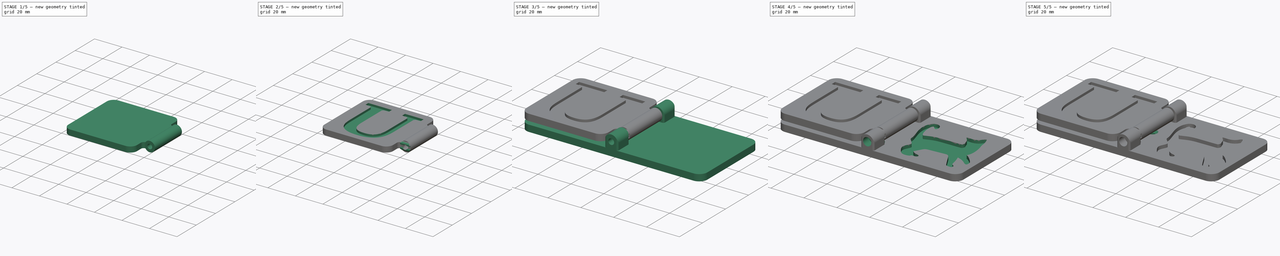
[diagram: build sequence overview — one tinted view per stage of 5, left to right]
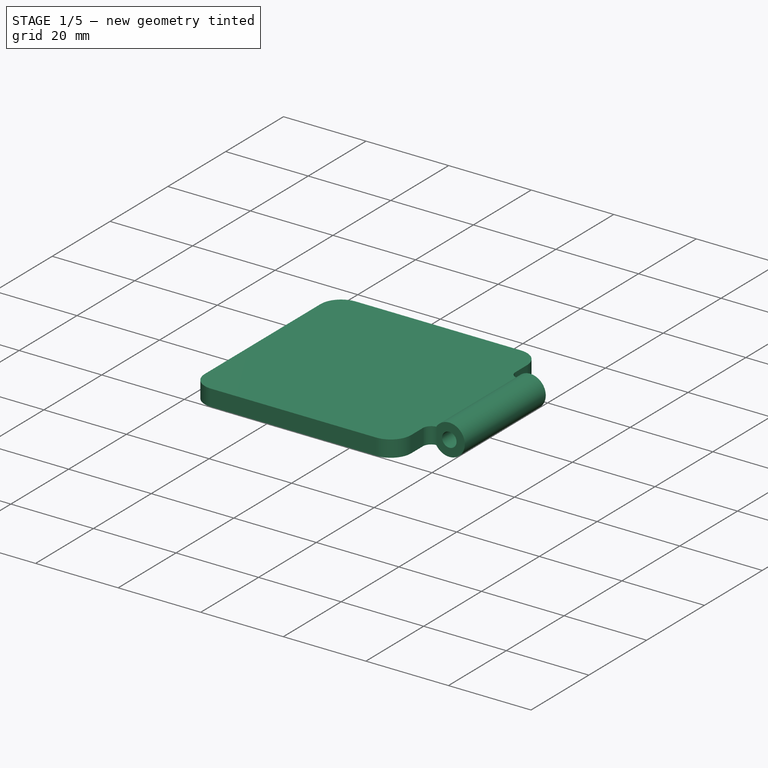
[diagram: stage 1 of 5 — iso view after this stage's code; geometry added in this stage tinted green]
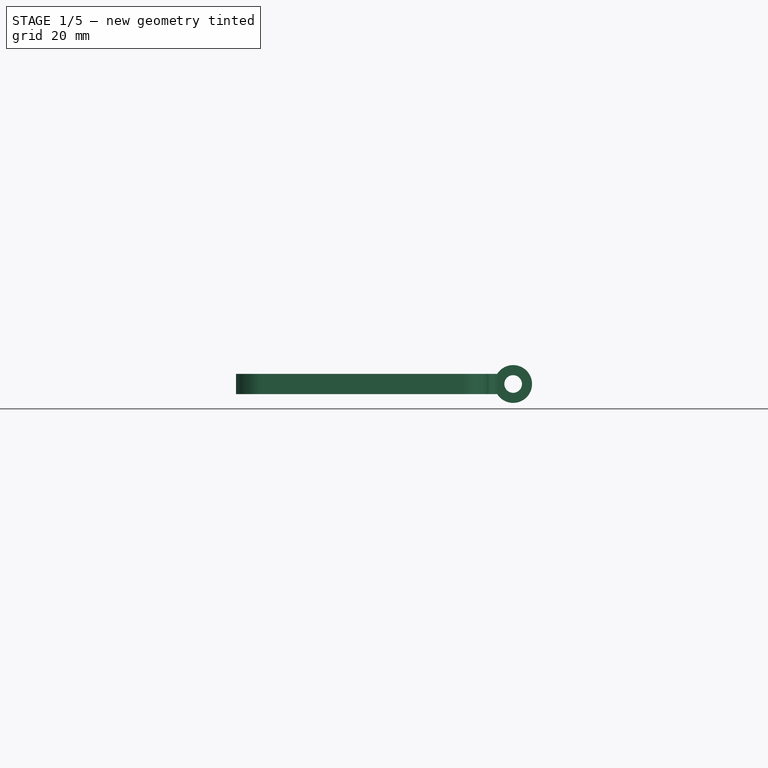
[diagram: stage 1 of 5 — front view after this stage's code; geometry added in this stage tinted green]
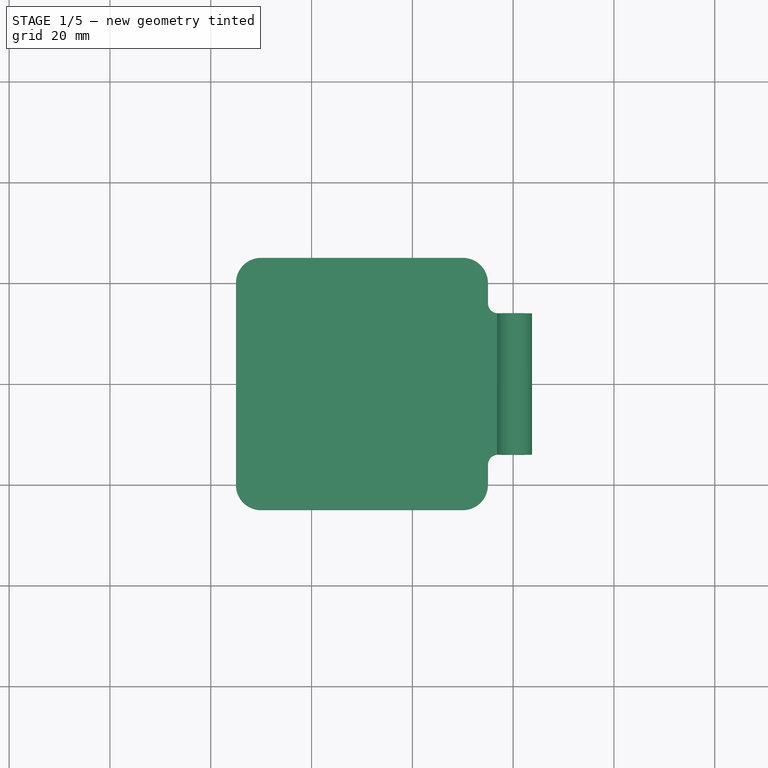
[diagram: stage 1 of 5 — top view after this stage's code; geometry added in this stage tinted green]
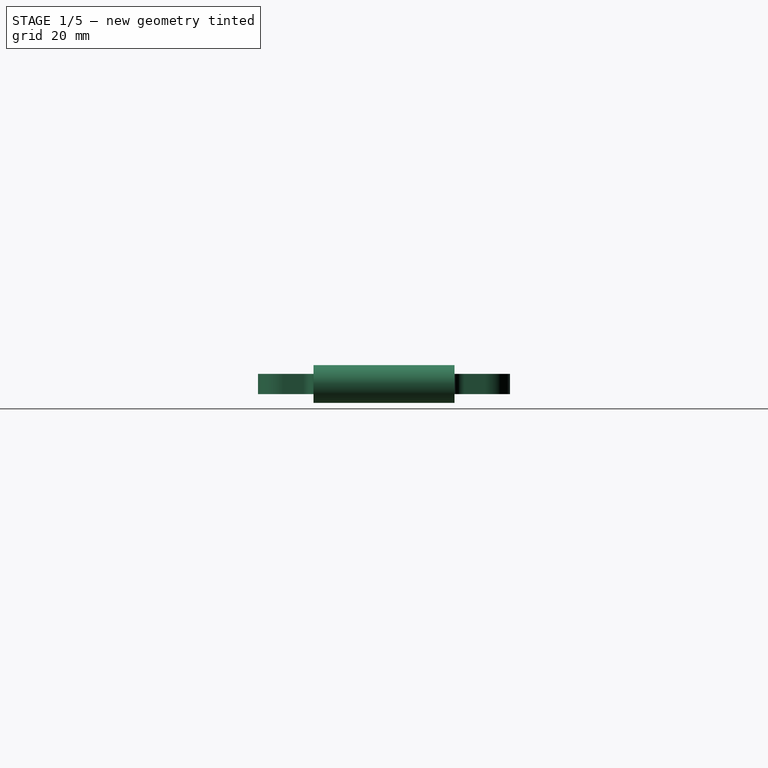
[diagram: stage 1 of 5 — right view after this stage's code; geometry added in this stage tinted green]
FCSTD DOCUMENT  (FreeCAD 1.0R39109 (Git))
Label: Cat is In-Out
License: All rights reserved
LicenseURL: https://en.wikipedia.org/wiki/All_rights_reserved
objects: Sketcher::SketchObject×14, PartDesign::Pocket×10, PartDesign::Pad×6, PartDesign::Body×2, Part::Part2DObjectPython×2, PartDesign::Plane×1, PartDesign::Chamfer×1
note: 84 computed .brp shape members not serialized (recipe doc carries the construction recipe); baked Part::Feature solids carry a one-line shape summary decoded from their .brp

FEATURE [PartDesign::Plane] DatumPlane
  AttachmentOffset = pos=(0,0,0) rot=(1,0,0;1.5708rad)
  AttachmentSupport = -> [Pocket]
  Length = 124.832
  MapMode = 45
  Placement = pos=(8.2e-15,5.2e-15,8) rot=(0,1,0;3.14159rad)
  ResizeMode = 0
  Width = 64.8324
FEATURE [Sketcher::SketchObject] Sketch003
  ArcFitTolerance = 1e-06
  AttachmentOffset = pos=(0,0,0) rot=(0,1,0;3.14159rad)
  AttachmentSupport = -> [DatumPlane]
  FullyConstrained = true
  MakeInternals = false
  MapMode = 5
  Placement = pos=(8.2e-15,5.2e-15,8) rot=(0,0,1;0rad)
  sketch-geometry (16):
    g0: LineSegment StartX=-55 StartY=20 StartZ=0 EndX=-55 EndY=-20 EndZ=0
    g1: LineSegment StartX=-50 StartY=-25 StartZ=0 EndX=-10 EndY=-25 EndZ=0
    g2: LineSegment StartX=-5 StartY=-20 StartZ=0 EndX=-5 EndY=-16 EndZ=0
    g3: LineSegment StartX=-10 StartY=25 StartZ=0 EndX=-50 EndY=25 EndZ=0
    g4: ArcOfCircle CenterX=-50 CenterY=20 CenterZ=0 NormalX=0 NormalY=0 NormalZ=1 AngleXU=0 Radius=5 StartAngle=1.5708 EndAngle=3.14159
    g5: ArcOfCircle CenterX=-50 CenterY=-20 CenterZ=0 NormalX=0 NormalY=0 NormalZ=1 AngleXU=0 Radius=5 StartAngle=3.14159 EndAngle=4.71239
    g6: ArcOfCircle CenterX=-10 CenterY=-20 CenterZ=0 NormalX=0 NormalY=0 NormalZ=1 AngleXU=0 Radius=5 StartAngle=4.71239 EndAngle=6.28319
    g7: ArcOfCircle CenterX=-10 CenterY=20 CenterZ=0 NormalX=0 NormalY=0 NormalZ=1 AngleXU=0 Radius=5 StartAngle=0 EndAngle=1.5708
    g8: GeomPoint [constr] X=-55 Y=25 Z=0
    g9: GeomPoint [constr] X=-5 Y=-25 Z=0
    g10: ArcOfCircle CenterX=-3 CenterY=16 CenterZ=0 NormalX=0 NormalY=0 NormalZ=1 AngleXU=0 Radius=2 StartAngle=3.14159 EndAngle=4.71239
    g11: ArcOfCircle CenterX=-3 CenterY=-16 CenterZ=0 NormalX=0 NormalY=0 NormalZ=1 AngleXU=0 Radius=2 StartAngle=1.5708 EndAngle=3.14159
    g12: LineSegment StartX=-3 StartY=14 StartZ=0 EndX=0 EndY=14 EndZ=0
    g13: LineSegment StartX=0 StartY=14 StartZ=0 EndX=0 EndY=-14 EndZ=0
    g14: LineSegment StartX=0 StartY=-14 StartZ=0 EndX=-3 EndY=-14 EndZ=0
    g15: LineSegment StartX=-5 StartY=16 StartZ=0 EndX=-5 EndY=20 EndZ=0
  constraints (38):
    c: Tangent(g0,g4) = -1.5708
    c: Tangent(g0,g5) = -1.5708
    c: Tangent(g1,g5) = -1.5708
    c: Tangent(g1,g6) = -1.5708
    c: Tangent(g2,g6) = -1.5708
    c: Tangent(g3,g7) = -1.5708
    c: Tangent(g3,g4) = -1.5708
    c: Vertical(g0)
    c: Vertical(g2)
    c: Horizontal(g1)
    c: Horizontal(g3)
    c: Equal(g5,g6)
    c: Equal(g6,g7)
    c: PointOnObject(g8,g0)
    c: PointOnObject(g8,g3)
    c: PointOnObject(g9,g1)
    c: PointOnObject(g9,g2)
    c: Distance(g0,g15) = 50
    c: Distance(g1,g3) = 50
    c: Radius(g5) = 5
    c: DistanceX(g15,g-1) = 5
    c: Symmetric(g3,g1,g-1)
    c: Horizontal(g12)
    c: Horizontal(g14)
    c: Tangent(g14,g11) = -1.5708
    c: Tangent(g12,g10) = -1.5708
    c: Symmetric(g13,g13,g-1)
    c: Radius(g10) = 2
    c: DistanceY(g14,g12) = 28
    c: Tangent(g2,g11) = 1.5708
    c: Tangent(g15,g10) = 1.5708
    c: Vertical(g15)
    c: Tangent(g15,g7) = -1.5708
    c: Vertical(g2,g10)
    c: Coincident(g14,g13)
    c: Coincident(g13,g12)
    c: Equal(g11,g10)
    c: PointOnObject(g12,g-2)
FEATURE [PartDesign::Pad] Pad002
  Direction = (0,1e-16,1)
  Length = 4
  Length2 = 10
  Midplane = true
  Placement = pos=(8.2e-15,5.2e-15,8) rot=(0,1,0;3.14159rad)
  Profile = -> Sketch003
  ReferenceAxis = -> Sketch003 [N_Axis]
  Refine = true
  Suppressed = false
  Type = 0
FEATURE [Sketcher::SketchObject] Sketch004
  ArcFitTolerance = 1e-06
  AttachmentSupport = -> [Pad002]
  ExternalGeometry = -> [Pad002]
  FullyConstrained = true
  MakeInternals = false
  MapMode = 5
  Placement = pos=(9.9e-15,-14,8) rot=(0,0.707107,-0.707107;3.14159rad)
  sketch-geometry (1):
    g0: Circle CenterX=0 CenterY=0 CenterZ=0 NormalX=0 NormalY=0 NormalZ=1 AngleXU=0 Radius=3.75
  constraints (2):
    c: Coincident(g0,g-1)
    c: Diameter(g0) = 7.5
FEATURE [PartDesign::Pad] Pad003
  BaseFeature = -> Pad002
  Direction = (0,-1,-2e-16)
  Length = 10
  Length2 = 10
  Placement = pos=(8.2e-15,5.2e-15,8) rot=(0,1,0;3.14159rad)
  Profile = -> Sketch004
  ReferenceAxis = -> Sketch004 [N_Axis]
  Refine = true
  Suppressed = false
  Type = 3
  UpToFace = -> Pad002 [Face13]
FEATURE [PartDesign::Pocket] Pocket001
  BaseFeature = -> Pad003
  Direction = (0,1,2e-16)
  Length = 5
  Length2 = 5
  Placement = pos=(8.2e-15,5.2e-15,8) rot=(0,1,0;3.14159rad)
  Profile = -> Sketch005
  ReferenceAxis = -> Sketch005 [N_Axis]
  Refine = true
  Suppressed = false
  Type = 1
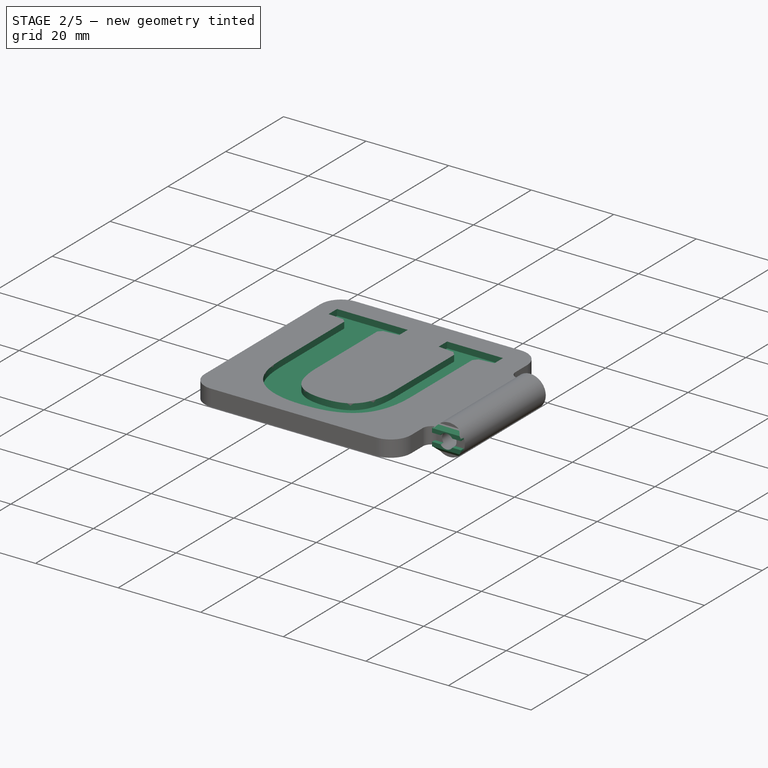
[diagram: stage 2 of 5 — iso view after this stage's code; geometry added in this stage tinted green]
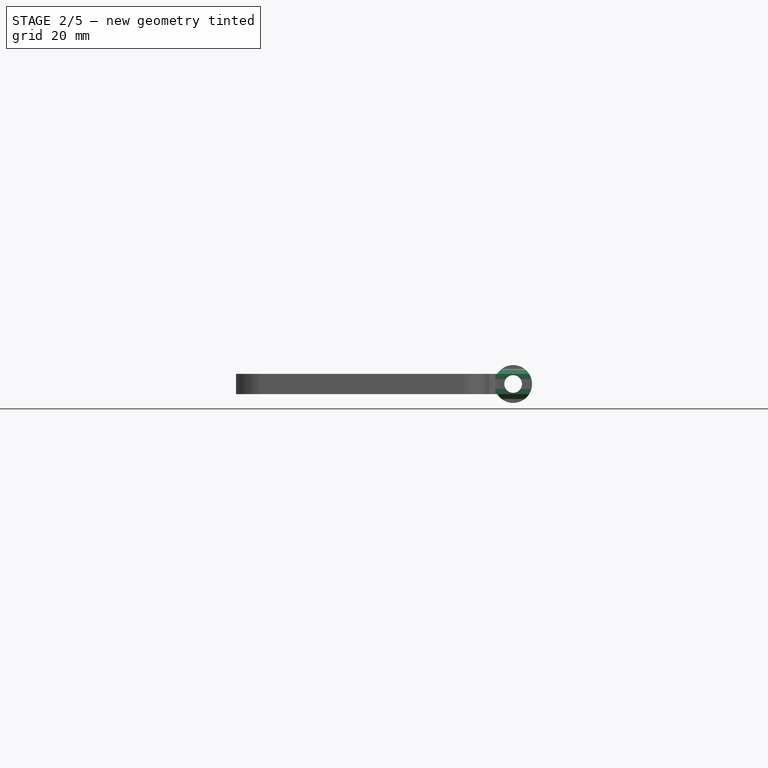
[diagram: stage 2 of 5 — front view after this stage's code; geometry added in this stage tinted green]
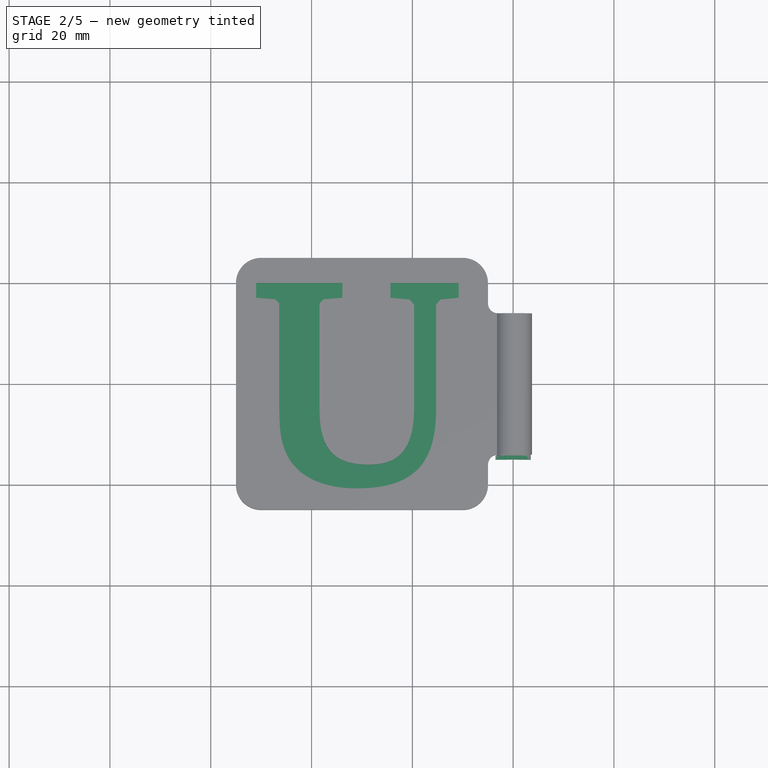
[diagram: stage 2 of 5 — top view after this stage's code; geometry added in this stage tinted green]
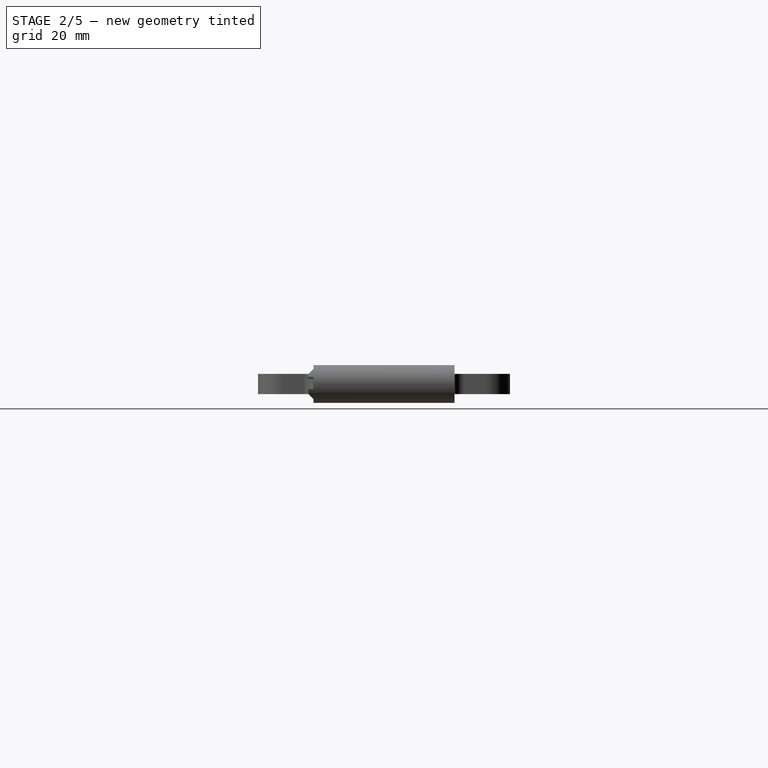
[diagram: stage 2 of 5 — right view after this stage's code; geometry added in this stage tinted green]
FEATURE [Sketcher::SketchObject] Sketch011
  ArcFitTolerance = 1e-06
  AttachmentSupport = -> [YZ_Plane001]
  ExternalGeometry = -> [Pocket001]
  FullyConstrained = true
  MakeInternals = false
  MapMode = 5
  Placement = pos=(0,0,0) rot=(0.57735,0.57735,0.57735;2.0944rad)
  sketch-geometry (9):
    g0: LineSegment StartX=-15 StartY=6 StartZ=0 EndX=-15 EndY=7 EndZ=0
    g1: LineSegment StartX=-14 StartY=5 StartZ=0 EndX=-15 EndY=6 EndZ=0
    g2: LineSegment StartX=-15 StartY=7 StartZ=0 EndX=-14 EndY=7 EndZ=0
    g3: LineSegment StartX=-14 StartY=7 StartZ=0 EndX=-14 EndY=5 EndZ=0
    g4: LineSegment StartX=-14 StartY=9 StartZ=0 EndX=-15 EndY=9 EndZ=0
    g5: LineSegment StartX=-15 StartY=9 StartZ=0 EndX=-15 EndY=10 EndZ=0
    g6: LineSegment StartX=-15 StartY=10 StartZ=0 EndX=-14 EndY=11 EndZ=0
    g7: LineSegment StartX=-14 StartY=11 StartZ=0 EndX=-14 EndY=9 EndZ=0
    g8: LineSegment [constr] StartX=-16 StartY=8 StartZ=0 EndX=-14 EndY=8 EndZ=0
  constraints (26):
    c: Vertical(g0)
    c: DistanceY(g0,g0) = 1
    c: PointOnObject(g1,g-3)
    c: Coincident(g1,g0)
    c: Coincident(g0,g2)
    c: PointOnObject(g2,g-3)
    c: Horizontal(g2)
    c: Coincident(g2,g3)
    c: Coincident(g3,g1)
    c: DistanceX(g2,g2) = 1
    c: DistanceY(g3,g3) = 2
    c: DistanceY(g1) = 5
    c: Coincident(g4,g5)
    c: Coincident(g5,g6)
    c: PointOnObject(g6,g-3)
    c: Coincident(g6,g7)
    c: Coincident(g7,g4)
    c: Horizontal(g4)
    c: Vertical(g5)
    c: Equal(g4,g2)
    c: Equal(g0,g5)
    c: Equal(g7,g3)
    c: PointOnObject(g8,g-3)
    c: Horizontal(g8)
    c: Symmetric(g-4,g-4,g8)
    c: Symmetric(g2,g4,g8)
FEATURE [PartDesign::Pad] Pad005
  BaseFeature = -> Pocket001
  Direction = (1,0,0)
  Length = 7
  Length2 = 10
  Midplane = true
  Placement = pos=(8.2e-15,5.2e-15,8) rot=(0,1,0;3.14159rad)
  Profile = -> Sketch011
  ReferenceAxis = -> Sketch011 [N_Axis]
  Refine = true
  Suppressed = false
  Type = 0
  UseCustomVector = true
FEATURE [Sketcher::SketchObject] Sketch012
  ArcFitTolerance = 1e-06
  AttachmentSupport = -> [Pad005]
  ExternalGeometry = -> [Pad005]
  FullyConstrained = true
  MakeInternals = false
  MapMode = 5
  Placement = pos=(8.2e-15,14,8) rot=(-1,0,0;1.5708rad)
  sketch-geometry (15):
    g0: LineSegment StartX=3.5 StartY=1.34629 StartZ=0 EndX=3.5 EndY=3 EndZ=0
    g1: LineSegment StartX=3.5 StartY=3 StartZ=0 EndX=2.25 EndY=3 EndZ=0
    g2: LineSegment StartX=-3.5 StartY=3 StartZ=0 EndX=-2.25 EndY=3 EndZ=0
    g3: LineSegment StartX=-3.5 StartY=3 StartZ=0 EndX=-3.5 EndY=2 EndZ=0
    g4: LineSegment StartX=-3.5 StartY=2 StartZ=0 EndX=-3.17214 EndY=2 EndZ=0
    g5: LineSegment StartX=3.5 StartY=-1.34629 StartZ=0 EndX=3.5 EndY=-3 EndZ=0
    g6: LineSegment StartX=3.5 StartY=-3 StartZ=0 EndX=2.25 EndY=-3 EndZ=0
    g7: LineSegment StartX=-3.5 StartY=-2 StartZ=0 EndX=-3.17214 EndY=-2 EndZ=0
    g8: LineSegment StartX=-3.5 StartY=-2 StartZ=0 EndX=-3.5 EndY=-3 EndZ=0
    g9: LineSegment StartX=-3.5 StartY=-3 StartZ=0 EndX=-2.25 EndY=-3 EndZ=0
    g10: ArcOfCircle CenterX=1.8e-15 CenterY=-6.9e-15 CenterZ=0 NormalX=0 NormalY=0 NormalZ=1 AngleXU=0 Radius=3.75 StartAngle=3.70413 EndAngle=4.06889
    g11: ArcOfCircle CenterX=2.4e-15 CenterY=-6.7e-15 CenterZ=0 NormalX=0 NormalY=0 NormalZ=1 AngleXU=0 Radius=3.75 StartAngle=2.2143 EndAngle=2.57906
    g12: ArcOfCircle CenterX=-2.39662e-11 CenterY=-2.0693e-12 CenterZ=0 NormalX=0 NormalY=0 NormalZ=1 AngleXU=0 Radius=3.75 StartAngle=0.367208 EndAngle=0.927295
    g13: ArcOfCircle CenterX=-2.3965e-11 CenterY=2.056e-12 CenterZ=0 NormalX=0 NormalY=0 NormalZ=1 AngleXU=0 Radius=3.75 StartAngle=5.35589 EndAngle=5.91598
    g14: Circle CenterX=0 CenterY=0 CenterZ=0 NormalX=0 NormalY=0 NormalZ=1 AngleXU=0 Radius=1.75
  constraints (38):
    c: Coincident(g0,g-6)
    c: Coincident(g0,g-6)
    c: Coincident(g1,g0)
    c: PointOnObject(g1,g-4)
    c: Horizontal(g1)
    c: Coincident(g2,g-5)
    c: PointOnObject(g2,g-4)
    c: Horizontal(g2)
    c: Coincident(g3,g2)
    c: Coincident(g3,g-5)
    c: Coincident(g4,g3)
    c: Coincident(g4,g-4)
    c: Coincident(g5,g-7)
    c: Coincident(g5,g-7)
    c: Coincident(g6,g5)
    c: PointOnObject(g6,g-4)
    c: Horizontal(g6)
    c: Coincident(g7,g-8)
    c: Coincident(g7,g-4)
    c: Coincident(g8,g7)
    c: Coincident(g8,g-8)
    c: Coincident(g9,g8)
    c: PointOnObject(g9,g-4)
    c: Horizontal(g9)
    c: Coincident(g10,g9)
    c: Coincident(g10,g7)
    c: Coincident(g11,g4)
    c: Coincident(g11,g2)
    c: Coincident(g12,g1)
    c: Coincident(g12,g0)
    c: Coincident(g13,g6)
    c: Coincident(g13,g5)
    c: Coincident(g14,g-1)
    c: Equal(g14,g-3)
    c: Equal(g12,g11)
    c: Equal(g11,g10)
    c: Equal(g10,g13)
    c: Equal(g13,g-4)
FEATURE [PartDesign::Pocket] Pocket005
  BaseFeature = -> Pad005
  Direction = (0,-1,-2e-16)
  Length = 5
  Length2 = 5
  Placement = pos=(8.2e-15,5.2e-15,8) rot=(0,1,0;3.14159rad)
  Profile = -> Sketch012
  ReferenceAxis = -> Sketch012 [N_Axis]
  Refine = true
  Suppressed = false
  Type = 1
FEATURE [PartDesign::Body] Body  label="Back"
  AllowCompound = false
  Group = -> [Sketch,Pad,Sketch001,Pad001,Sketch002,Pocket,DatumPlane,Sketch006,Pocket002,Sketch008,Pocket003,Sketch009,Pocket004,Sketch010,Pad004,Sketch013,Pocket006,Chamfer,Sketch014,Pocket007]
  Origin = -> Origin
  Tip = -> Pocket007
FEATURE [Part::Part2DObjectPython] ShapeString  # Draft 2D object (typed FeaturePython)
  AttachmentOffset = pos=(51,20,0) rot=(0,0,1;3.14159rad)
  AttachmentSupport = -> [Pocket005]
  FontFile = <userpath>/Documents/Fonts/otf/Charter Bold.otf
  Fuse = false
  Justification = 6
  JustificationReference = 0
  KeepLeftMargin = false
  MakeFace = true
  MapMode = 5
  ObliqueAngle = 0
  Placement = pos=(-51,-20,10) rot=(0,0,1;0rad)
  ScaleToSize = true
  Size = 40
  String = U
  Tracking = 0
FEATURE [PartDesign::Pocket] Pocket008
  BaseFeature = -> Pocket005
  Direction = (0,0,-1)
  Length = 1.5
  Length2 = 5
  Placement = pos=(8.2e-15,5.2e-15,8) rot=(0,1,0;3.14159rad)
  Profile = -> ShapeString
  ReferenceAxis = -> ShapeString [N_Axis]
  Refine = true
  Suppressed = false
  Type = 0
FEATURE [Part::Part2DObjectPython] ShapeString001  # Draft 2D object (typed FeaturePython)
  AttachmentOffset = pos=(21,-20,0) rot=(0,0,1;0rad)
  AttachmentSupport = -> [Pocket008]
  FontFile = <userpath>/Documents/Fonts/otf/Charter Bold.otf
  Fuse = false
  Justification = 6
  JustificationReference = 0
  KeepLeftMargin = false
  MakeFace = true
  MapMode = 5
  ObliqueAngle = 0
  Placement = pos=(-21,-20,6) rot=(0,1,0;3.14159rad)
  ScaleToSize = true
  Size = 40
  String = I
  Tracking = 0
FEATURE [PartDesign::Pocket] Pocket009
  BaseFeature = -> Pocket008
  Direction = (0,0,1)
  Length = 1.5
  Length2 = 5
  Placement = pos=(8.2e-15,5.2e-15,8) rot=(0,1,0;3.14159rad)
  Profile = -> ShapeString001
  ReferenceAxis = -> ShapeString001 [N_Axis]
  Refine = true
  Suppressed = false
  Type = 0
FEATURE [PartDesign::Body] Body001  label="Flap"
  AllowCompound = false
  Group = -> [Sketch003,Pad002,Sketch004,Pad003,Sketch005,Pocket001,Sketch011,Pad005,Sketch012,Pocket005,ShapeString,Pocket008,ShapeString001,Pocket009]
  Origin = -> Origin001
  Tip = -> Pocket009
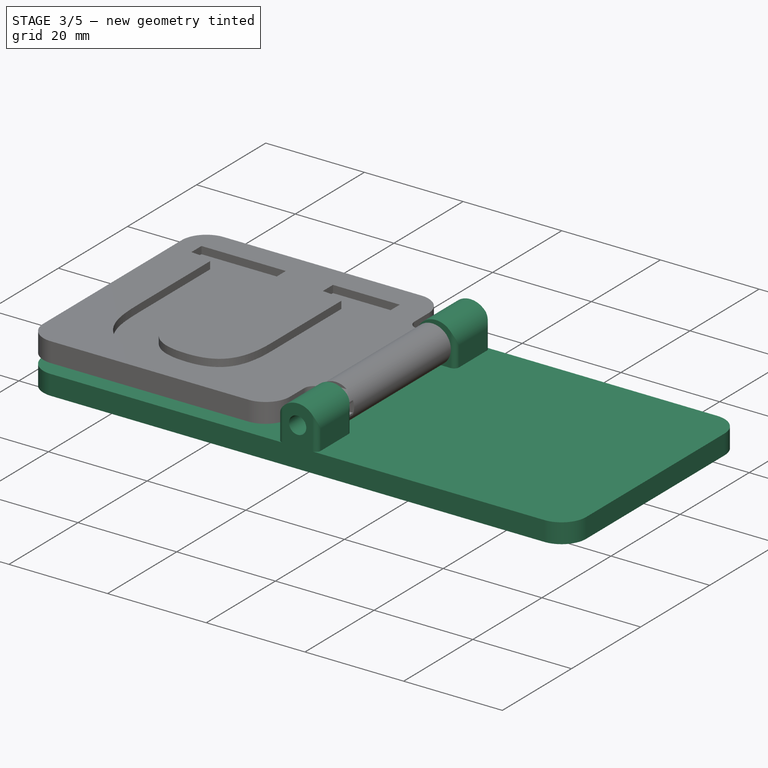
[diagram: stage 3 of 5 — iso view after this stage's code; geometry added in this stage tinted green]
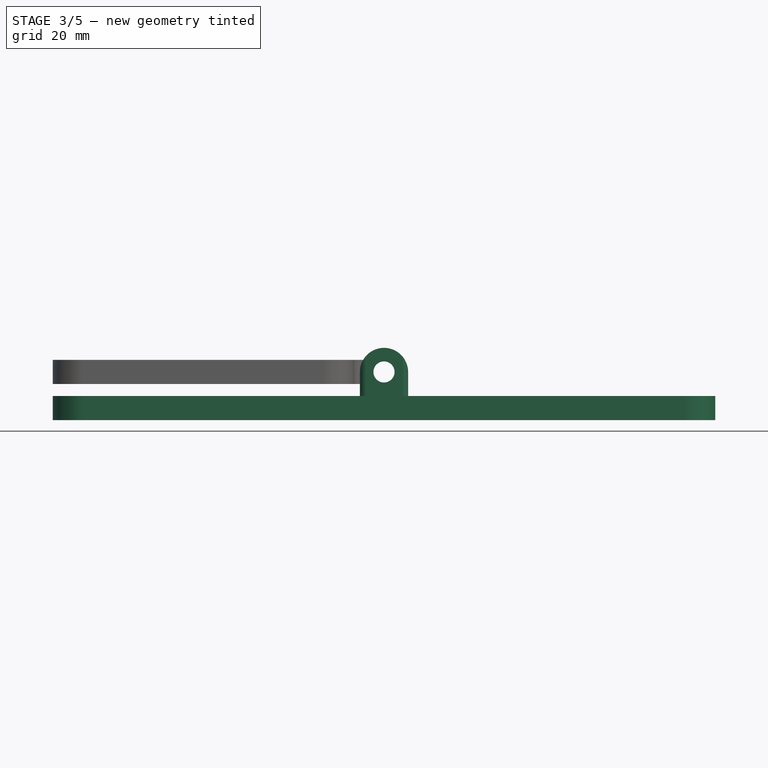
[diagram: stage 3 of 5 — front view after this stage's code; geometry added in this stage tinted green]
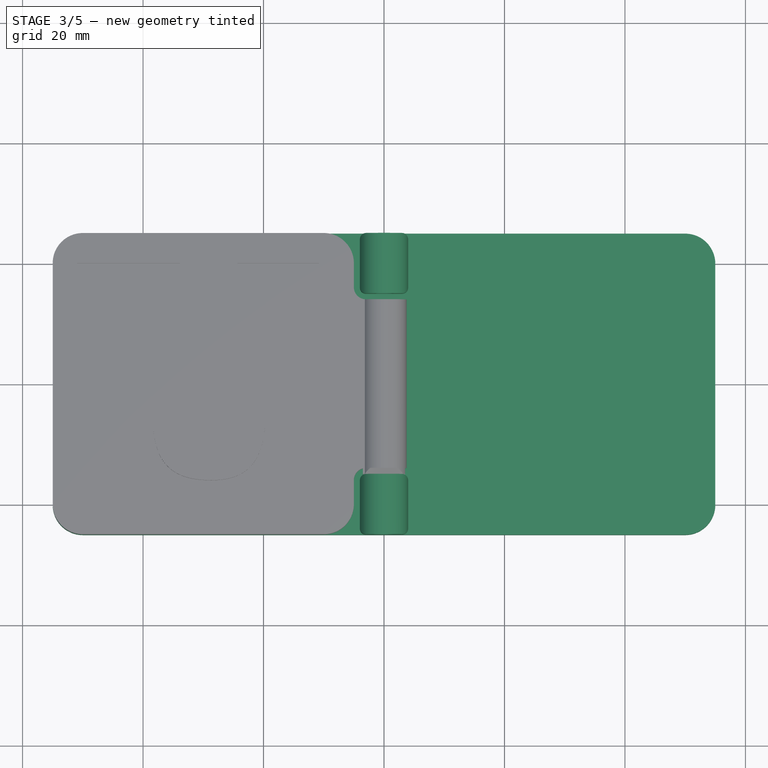
[diagram: stage 3 of 5 — top view after this stage's code; geometry added in this stage tinted green]
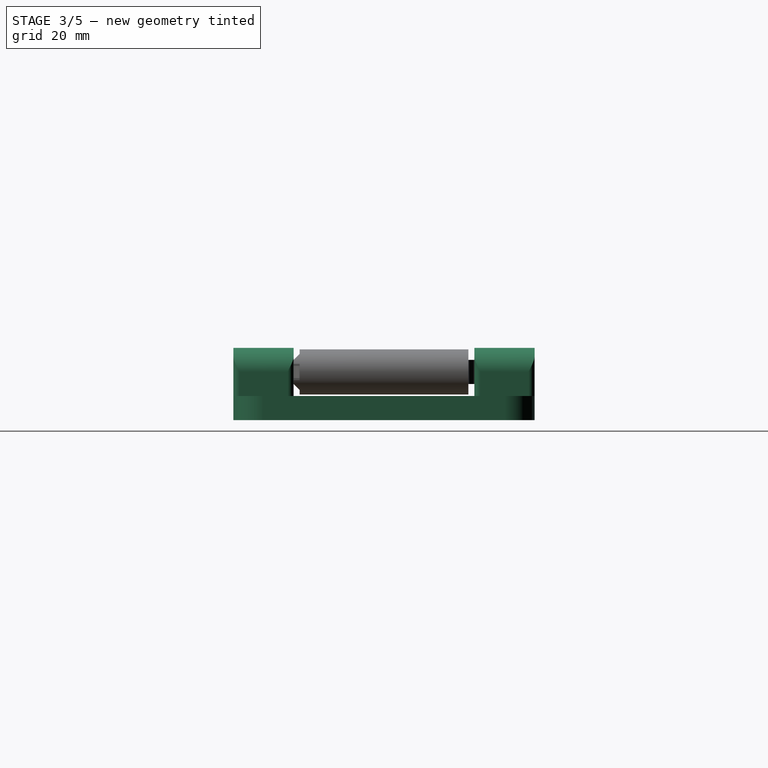
[diagram: stage 3 of 5 — right view after this stage's code; geometry added in this stage tinted green]
FEATURE [Sketcher::SketchObject] Sketch
  ArcFitTolerance = 1e-06
  AttachmentSupport = -> [XY_Plane]
  FullyConstrained = true
  MakeInternals = false
  MapMode = 5
  sketch-geometry (10):
    g0: LineSegment StartX=-55 StartY=20 StartZ=0 EndX=-55 EndY=-20 EndZ=0
    g1: LineSegment StartX=-50 StartY=-25 StartZ=0 EndX=50 EndY=-25 EndZ=0
    g2: LineSegment StartX=55 StartY=-20 StartZ=0 EndX=55 EndY=20 EndZ=0
    g3: LineSegment StartX=50 StartY=25 StartZ=0 EndX=-50 EndY=25 EndZ=0
    g4: ArcOfCircle CenterX=-50 CenterY=20 CenterZ=0 NormalX=0 NormalY=0 NormalZ=1 AngleXU=0 Radius=5 StartAngle=1.5708 EndAngle=3.14159
    g5: ArcOfCircle CenterX=-50 CenterY=-20 CenterZ=0 NormalX=0 NormalY=0 NormalZ=1 AngleXU=0 Radius=5 StartAngle=3.14159 EndAngle=4.71239
    g6: ArcOfCircle CenterX=50 CenterY=-20 CenterZ=0 NormalX=0 NormalY=0 NormalZ=1 AngleXU=0 Radius=5 StartAngle=4.71239 EndAngle=6.28319
    g7: ArcOfCircle CenterX=50 CenterY=20 CenterZ=0 NormalX=0 NormalY=0 NormalZ=1 AngleXU=0 Radius=5 StartAngle=0 EndAngle=1.5708
    g8: GeomPoint [constr] X=-55 Y=25 Z=0
    g9: GeomPoint [constr] X=55 Y=-25 Z=0
  constraints (22):
    c: Tangent(g0,g4) = -1.5708
    c: Tangent(g0,g5) = -1.5708
    c: Tangent(g1,g5) = -1.5708
    c: Tangent(g1,g6) = -1.5708
    c: Tangent(g2,g6) = -1.5708
    c: Tangent(g2,g7) = -1.5708
    c: Tangent(g3,g7) = -1.5708
    c: Tangent(g3,g4) = -1.5708
    c: Vertical(g0)
    c: Vertical(g2)
    c: Horizontal(g1)
    c: Equal(g5,g6)
    c: Equal(g6,g7)
    c: PointOnObject(g8,g0)
    c: PointOnObject(g8,g3)
    c: PointOnObject(g9,g1)
    c: PointOnObject(g9,g2)
    c: Distance(g0,g2) = 110
    c: Distance(g1,g3) = 50
    c: Radius(g5) = 5
    c: Symmetric(g3,g3,g-2)
    c: Symmetric(g1,g3,g-1)
FEATURE [PartDesign::Pad] Pad
  Direction = (0,0,1)
  Length = 4
  Length2 = 10
  Profile = -> Sketch
  ReferenceAxis = -> Sketch [N_Axis]
  Refine = true
  Suppressed = false
  Type = 0
FEATURE [Sketcher::SketchObject] Sketch001
  ArcFitTolerance = 1e-06
  AttachmentSupport = -> [Pad]
  ExternalGeometry = -> [Pad]
  FullyConstrained = true
  MakeInternals = false
  MapMode = 5
  Placement = pos=(0,0,4) rot=(0,0,1;0rad)
  sketch-geometry (20):
    g0: LineSegment StartX=-4 StartY=24 StartZ=0 EndX=-4 EndY=16 EndZ=0
    g1: LineSegment StartX=-3 StartY=15 StartZ=0 EndX=3 EndY=15 EndZ=0
    g2: LineSegment StartX=4 StartY=16 StartZ=0 EndX=4 EndY=24 EndZ=0
    g3: LineSegment StartX=3 StartY=25 StartZ=0 EndX=-3 EndY=25 EndZ=0
    g4: ArcOfCircle CenterX=-3 CenterY=24 CenterZ=0 NormalX=0 NormalY=0 NormalZ=1 AngleXU=0 Radius=1 StartAngle=1.5708 EndAngle=3.14159
    g5: ArcOfCircle CenterX=-3 CenterY=16 CenterZ=0 NormalX=0 NormalY=0 NormalZ=1 AngleXU=0 Radius=1 StartAngle=3.14159 EndAngle=4.71239
    g6: ArcOfCircle CenterX=3 CenterY=16 CenterZ=0 NormalX=0 NormalY=0 NormalZ=1 AngleXU=0 Radius=1 StartAngle=4.71239 EndAngle=6.28319
    g7: ArcOfCircle CenterX=3 CenterY=24 CenterZ=0 NormalX=0 NormalY=0 NormalZ=1 AngleXU=0 Radius=1 StartAngle=-3.6e-15 EndAngle=1.5708
    g8: GeomPoint [constr] X=-4 Y=25 Z=0
    g9: GeomPoint [constr] X=4 Y=15 Z=0
    g10: LineSegment StartX=-4 StartY=-16 StartZ=0 EndX=-4 EndY=-24 EndZ=0
    g11: LineSegment StartX=-3 StartY=-25 StartZ=0 EndX=3 EndY=-25 EndZ=0
    g12: LineSegment StartX=4 StartY=-24 StartZ=0 EndX=4 EndY=-16 EndZ=0
    g13: LineSegment StartX=3 StartY=-15 StartZ=0 EndX=-3 EndY=-15 EndZ=0
    g14: ArcOfCircle CenterX=-3 CenterY=-16 CenterZ=0 NormalX=0 NormalY=0 NormalZ=1 AngleXU=0 Radius=1 StartAngle=1.5708 EndAngle=3.14159
    g15: ArcOfCircle CenterX=-3 CenterY=-24 CenterZ=0 NormalX=0 NormalY=0 NormalZ=1 AngleXU=0 Radius=1 StartAngle=3.14159 EndAngle=4.71239
    g16: ArcOfCircle CenterX=3 CenterY=-24 CenterZ=0 NormalX=0 NormalY=0 NormalZ=1 AngleXU=0 Radius=1 StartAngle=4.71239 EndAngle=6.28319
    g17: ArcOfCircle CenterX=3 CenterY=-16 CenterZ=0 NormalX=0 NormalY=0 NormalZ=1 AngleXU=0 Radius=1 StartAngle=-9e-16 EndAngle=1.5708
    g18: GeomPoint [constr] X=-4 Y=-15 Z=0
    g19: GeomPoint [constr] X=4 Y=-25 Z=0
  constraints (47):
    c: Tangent(g0,g4) = -1.5708
    c: Tangent(g0,g5) = -1.5708
    c: Tangent(g1,g5) = -1.5708
    c: Tangent(g1,g6) = -1.5708
    c: Tangent(g2,g6) = -1.5708
    c: Tangent(g2,g7) = -1.5708
    c: Tangent(g3,g7) = -1.5708
    c: Tangent(g3,g4) = -1.5708
    c: Vertical(g0)
    c: Vertical(g2)
    c: Horizontal(g1)
    c: Equal(g4,g5)
    c: Equal(g5,g6)
    c: Equal(g6,g7)
    c: PointOnObject(g8,g0)
    c: PointOnObject(g8,g3)
    c: PointOnObject(g9,g1)
    c: PointOnObject(g9,g2)
    c: Distance(g0,g2) = 8
    c: Distance(g1,g3) = 10
    c: Radius(g5) = 1
    c: Tangent(g10,g14) = -1.5708
    c: Tangent(g10,g15) = -1.5708
    c: Tangent(g11,g15) = -1.5708
    c: Tangent(g11,g16) = -1.5708
    c: Tangent(g12,g16) = -1.5708
    c: Tangent(g12,g17) = -1.5708
    c: Tangent(g13,g17) = -1.5708
    c: Tangent(g13,g14) = -1.5708
    c: Vertical(g10)
    c: Vertical(g12)
    c: Horizontal(g11)
    c: Horizontal(g13)
    c: Equal(g14,g15)
    c: Equal(g15,g16)
    c: Equal(g16,g17)
    c: PointOnObject(g18,g10)
    c: PointOnObject(g18,g13)
    c: PointOnObject(g19,g11)
    c: PointOnObject(g19,g12)
    c: Symmetric(g3,g3,g-2)
    c: PointOnObject(g3,g-3)
    c: Vertical(g10,g0)
    c: PointOnObject(g11,g-4)
    c: Equal(g3,g13)
    c: Equal(g0,g10)
    c: Equal(g5,g14)
FEATURE [PartDesign::Pad] Pad001
  BaseFeature = -> Pad
  Direction = (0,0,1)
  Length = 8
  Length2 = 10
  Profile = -> Sketch001
  ReferenceAxis = -> Sketch001 [N_Axis]
  Refine = true
  Suppressed = false
  Type = 0
FEATURE [Sketcher::SketchObject] Sketch002
  ArcFitTolerance = 1e-06
  AttachmentSupport = -> [Pad001]
  ExternalGeometry = -> [Pad001]
  FullyConstrained = true
  MakeInternals = false
  MapMode = 5
  Placement = pos=(0,-25,0) rot=(1,0,0;1.5708rad)
  sketch-geometry (7):
    g0: Circle CenterX=0 CenterY=8 CenterZ=0 NormalX=0 NormalY=0 NormalZ=1 AngleXU=0 Radius=1.75
    g1: LineSegment [constr] StartX=0 StartY=8 StartZ=0 EndX=-4 EndY=8 EndZ=0
    g2: ArcOfCircle CenterX=2e-16 CenterY=8.00001 CenterZ=0 NormalX=0 NormalY=0 NormalZ=1 AngleXU=0 Radius=4 StartAngle=6.28318 EndAngle=9.42478
    g3: LineSegment StartX=-4 StartY=8 StartZ=0 EndX=-4 EndY=12 EndZ=0
    g4: LineSegment StartX=-4 StartY=12 StartZ=0 EndX=4 EndY=12 EndZ=0
    g5: LineSegment StartX=4 StartY=12 StartZ=0 EndX=4 EndY=8 EndZ=0
    g6: GeomPoint X=0 Y=12 Z=0
  constraints (18):
    c: Diameter(g0) = 3.5
    c: PointOnObject(g0,g-2)
    c: Coincident(g1,g0)
    c: Horizontal(g1)
    c: Symmetric(g-3,g-3,g1)
    c: Coincident(g2,g1)
    c: Symmetric(g2,g1,g-2)
    c: Coincident(g1,g3)
    c: Vertical(g3)
    c: Tangent(g3,g2)
    c: Coincident(g3,g4)
    c: Horizontal(g4)
    c: Coincident(g4,g5)
    c: Vertical(g5)
    c: Symmetric(g5,g1,g-2)
    c: PointOnObject(g6,g4)
    c: PointOnObject(g6,g2)
    c: PointOnObject(g6,g-2)
FEATURE [PartDesign::Pocket] Pocket
  BaseFeature = -> Pad001
  Direction = (0,1,-2e-16)
  Length = 5
  Length2 = 5
  Profile = -> Sketch002
  ReferenceAxis = -> Sketch002 [N_Axis]
  Refine = true
  Suppressed = false
  Type = 1
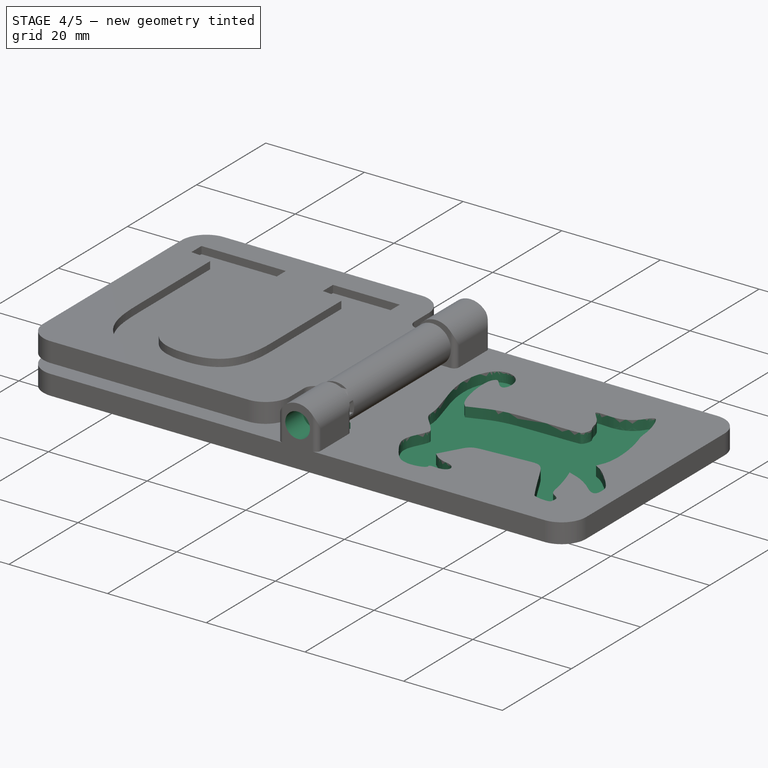
[diagram: stage 4 of 5 — iso view after this stage's code; geometry added in this stage tinted green]
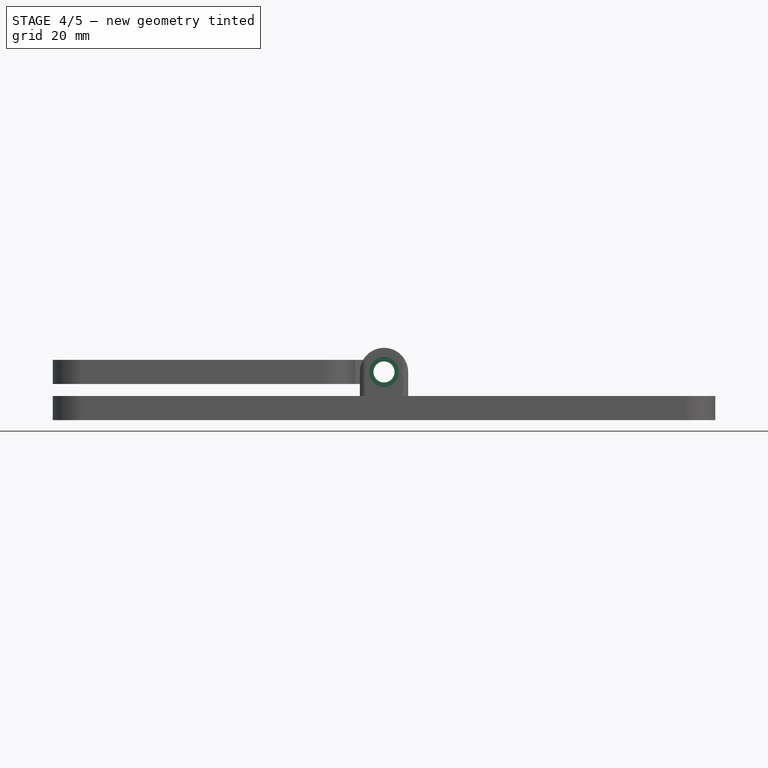
[diagram: stage 4 of 5 — front view after this stage's code; geometry added in this stage tinted green]
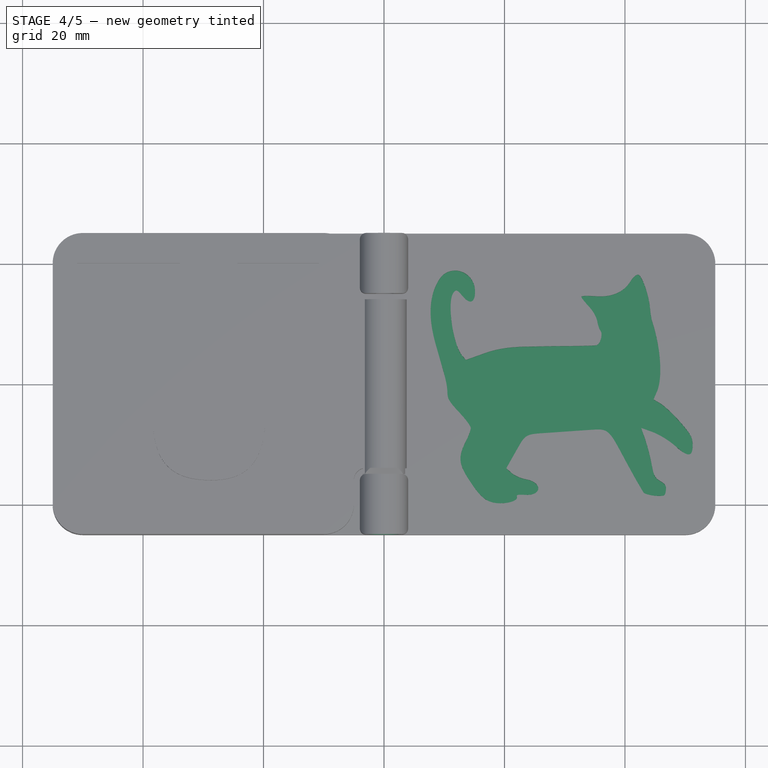
[diagram: stage 4 of 5 — top view after this stage's code; geometry added in this stage tinted green]
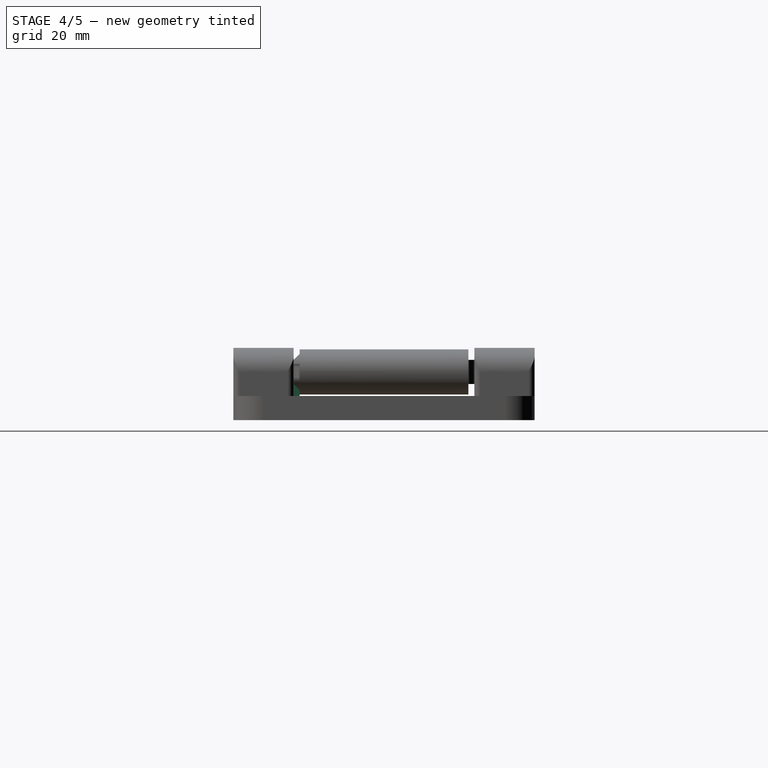
[diagram: stage 4 of 5 — right view after this stage's code; geometry added in this stage tinted green]
FEATURE [Sketcher::SketchObject] Sketch005
  ArcFitTolerance = 1e-06
  AttachmentSupport = -> [Pad003]
  FullyConstrained = true
  MakeInternals = false
  MapMode = 5
  Placement = pos=(8.2e-15,-14,8) rot=(0,0.707107,-0.707107;3.14159rad)
  sketch-geometry (1):
    g0: Circle CenterX=0 CenterY=0 CenterZ=0 NormalX=0 NormalY=0 NormalZ=1 AngleXU=0 Radius=1.75
  constraints (2):
    c: Coincident(g0,g-1)
    c: Diameter(g0) = 3.5
FEATURE [Sketcher::SketchObject] Sketch006
  ArcFitTolerance = 1e-06
  AttachmentSupport = -> [Pocket]
  ExternalGeometry = -> [Pocket]
  FullyConstrained = true
  MakeInternals = false
  MapMode = 5
  Placement = pos=(0,-25,0) rot=(1,0,0;1.5708rad)
  sketch-geometry (1):
    g0: Circle CenterX=0 CenterY=8 CenterZ=0 NormalX=0 NormalY=0 NormalZ=1 AngleXU=0 Radius=2.5
  constraints (2):
    c: Coincident(g0,g-3)
    c: Diameter(g0) = 5
FEATURE [PartDesign::Pocket] Pocket002
  BaseFeature = -> Pocket
  Direction = (0,1,-2e-16)
  Length = 5
  Length2 = 5
  Profile = -> Sketch006
  ReferenceAxis = -> Sketch006 [N_Axis]
  Refine = true
  Suppressed = false
  Type = 0
FEATURE [Sketcher::SketchObject] Sketch008
  ArcFitTolerance = 1e-06
  AttachmentOffset = pos=(7,-25,0) rot=(0,0,1;0rad)
  AttachmentSupport = -> [Pocket002]
  FullyConstrained = false
  MakeInternals = false
  MapMode = 5
  Placement = pos=(7,-25,4) rot=(0,0,1;0rad)
  sketch-geometry (49):
    g0: BSplineCurve PolesCount=4 KnotsCount=2 Degree=3 IsPeriodic=0
    g1: BSplineCurve PolesCount=4 KnotsCount=2 Degree=3 IsPeriodic=0
    g2: BSplineCurve PolesCount=4 KnotsCount=2 Degree=3 IsPeriodic=0
    g3: BSplineCurve PolesCount=4 KnotsCount=2 Degree=3 IsPeriodic=0
    g4: BSplineCurve PolesCount=4 KnotsCount=2 Degree=3 IsPeriodic=0
    g5: BSplineCurve PolesCount=4 KnotsCount=2 Degree=3 IsPeriodic=0
    g6: BSplineCurve PolesCount=4 KnotsCount=2 Degree=3 IsPeriodic=0
    g7: BSplineCurve PolesCount=4 KnotsCount=2 Degree=3 IsPeriodic=0
    g8: BSplineCurve PolesCount=4 KnotsCount=2 Degree=3 IsPeriodic=0
    g9: BSplineCurve PolesCount=4 KnotsCount=2 Degree=3 IsPeriodic=0
    g10: BSplineCurve PolesCount=4 KnotsCount=2 Degree=3 IsPeriodic=0
    g11: BSplineCurve PolesCount=4 KnotsCount=2 Degree=3 IsPeriodic=0
    g12: BSplineCurve PolesCount=2 KnotsCount=2 Degree=1 IsPeriodic=0
    g13: BSplineCurve PolesCount=2 KnotsCount=2 Degree=1 IsPeriodic=0
    g14: BSplineCurve PolesCount=4 KnotsCount=2 Degree=3 IsPeriodic=0
    g15: BSplineCurve PolesCount=4 KnotsCount=2 Degree=3 IsPeriodic=0
    g16: BSplineCurve PolesCount=4 KnotsCount=2 Degree=3 IsPeriodic=0
    g17: BSplineCurve PolesCount=4 KnotsCount=2 Degree=3 IsPeriodic=0
    g18: BSplineCurve PolesCount=4 KnotsCount=2 Degree=3 IsPeriodic=0
    g19: BSplineCurve PolesCount=4 KnotsCount=2 Degree=3 IsPeriodic=0
    g20: BSplineCurve PolesCount=4 KnotsCount=2 Degree=3 IsPeriodic=0
    g21: BSplineCurve PolesCount=4 KnotsCount=2 Degree=3 IsPeriodic=0
    g22: BSplineCurve PolesCount=4 KnotsCount=2 Degree=3 IsPeriodic=0
    g23: BSplineCurve PolesCount=2 KnotsCount=2 Degree=1 IsPeriodic=0
    g24: BSplineCurve PolesCount=2 KnotsCount=2 Degree=1 IsPeriodic=0
    g25: BSplineCurve PolesCount=4 KnotsCount=2 Degree=3 IsPeriodic=0
    g26: BSplineCurve PolesCount=4 KnotsCount=2 Degree=3 IsPeriodic=0
    g27: BSplineCurve PolesCount=4 KnotsCount=2 Degree=3 IsPeriodic=0
    g28: BSplineCurve PolesCount=4 KnotsCount=2 Degree=3 IsPeriodic=0
    g29: BSplineCurve PolesCount=2 KnotsCount=2 Degree=1 IsPeriodic=0
    g30: BSplineCurve PolesCount=2 KnotsCount=2 Degree=1 IsPeriodic=0
    g31: BSplineCurve PolesCount=4 KnotsCount=2 Degree=3 IsPeriodic=0
    g32: BSplineCurve PolesCount=4 KnotsCount=2 Degree=3 IsPeriodic=0
    g33: BSplineCurve PolesCount=4 KnotsCount=2 Degree=3 IsPeriodic=0
    g34: BSplineCurve PolesCount=4 KnotsCount=2 Degree=3 IsPeriodic=0
    g35: BSplineCurve PolesCount=4 KnotsCount=2 Degree=3 IsPeriodic=0
    g36: BSplineCurve PolesCount=4 KnotsCount=2 Degree=3 IsPeriodic=0
    g37: BSplineCurve PolesCount=4 KnotsCount=2 Degree=3 IsPeriodic=0
    g38: BSplineCurve PolesCount=4 KnotsCount=2 Degree=3 IsPeriodic=0
    g39: BSplineCurve PolesCount=4 KnotsCount=2 Degree=3 IsPeriodic=0
    g40: BSplineCurve PolesCount=4 KnotsCount=2 Degree=3 IsPeriodic=0
    g41: BSplineCurve PolesCount=4 KnotsCount=2 Degree=3 IsPeriodic=0
    g42: BSplineCurve PolesCount=4 KnotsCount=2 Degree=3 IsPeriodic=0
    g43: BSplineCurve PolesCount=2 KnotsCount=2 Degree=1 IsPeriodic=0
    g44: BSplineCurve PolesCount=2 KnotsCount=2 Degree=1 IsPeriodic=0
    g45: BSplineCurve PolesCount=4 KnotsCount=2 Degree=3 IsPeriodic=0
    g46: BSplineCurve PolesCount=4 KnotsCount=2 Degree=3 IsPeriodic=0
    g47: BSplineCurve PolesCount=4 KnotsCount=2 Degree=3 IsPeriodic=0
    g48: BSplineCurve PolesCount=4 KnotsCount=2 Degree=3 IsPeriodic=0
  constraints (49):
    c: Coincident(g0,g1)
    c: Coincident(g1,g2)
    c: Coincident(g2,g3)
    c: Coincident(g3,g4)
    c: Coincident(g4,g5)
    c: Coincident(g5,g6)
    c: Coincident(g6,g7)
    c: Coincident(g7,g8)
    c: Coincident(g8,g9)
    c: Coincident(g9,g10)
    c: Coincident(g10,g11)
    c: Coincident(g11,g12)
    c: Coincident(g12,g13)
    c: Coincident(g13,g14)
    c: Coincident(g14,g15)
    c: Coincident(g15,g16)
    c: Coincident(g16,g17)
    c: Coincident(g17,g18)
    c: Coincident(g18,g19)
    c: Coincident(g19,g20)
    c: Coincident(g20,g21)
    c: Coincident(g21,g22)
    c: Coincident(g22,g23)
    c: Coincident(g23,g24)
    c: Coincident(g24,g25)
    c: Coincident(g25,g26)
    c: Coincident(g26,g27)
    c: Coincident(g27,g28)
    c: Coincident(g28,g29)
    c: Coincident(g29,g30)
    c: Coincident(g30,g31)
    c: Coincident(g31,g32)
    c: Coincident(g32,g33)
    c: Coincident(g33,g34)
    c: Coincident(g34,g35)
    c: Coincident(g35,g36)
    c: Coincident(g36,g37)
    c: Coincident(g37,g38)
    c: Coincident(g38,g39)
    c: Coincident(g39,g40)
    c: Coincident(g40,g41)
    c: Coincident(g41,g42)
    c: Coincident(g42,g43)
    c: Coincident(g43,g44)
    c: Coincident(g44,g45)
    c: Coincident(g45,g46)
    c: Coincident(g46,g47)
    c: Coincident(g47,g48)
    c: Coincident(g48,g0)
FEATURE [PartDesign::Pocket] Pocket003
  BaseFeature = -> Pocket002
  Direction = (0,0,-1)
  Length = 2
  Length2 = 5
  Profile = -> Sketch008
  ReferenceAxis = -> Sketch008 [N_Axis]
  Refine = true
  Suppressed = false
  Type = 0
FEATURE [Sketcher::SketchObject] Sketch009
  ArcFitTolerance = 1e-06
  AttachmentOffset = pos=(-4,-22,0) rot=(0,1,0;3.14159rad)
  AttachmentSupport = -> [Pocket003]
  FullyConstrained = false
  MakeInternals = false
  MapMode = 5
  Placement = pos=(-4,-22,4) rot=(0,1,0;3.14159rad)
  sketch-geometry (30):
    g0: BSplineCurve PolesCount=4 KnotsCount=2 Degree=3 IsPeriodic=0
    g1: BSplineCurve PolesCount=4 KnotsCount=2 Degree=3 IsPeriodic=0
    g2: BSplineCurve PolesCount=2 KnotsCount=2 Degree=1 IsPeriodic=0
    g3: BSplineCurve PolesCount=4 KnotsCount=2 Degree=3 IsPeriodic=0
    g4: BSplineCurve PolesCount=4 KnotsCount=2 Degree=3 IsPeriodic=0
    g5: BSplineCurve PolesCount=4 KnotsCount=2 Degree=3 IsPeriodic=0
    g6: BSplineCurve PolesCount=4 KnotsCount=2 Degree=3 IsPeriodic=0
    g7: BSplineCurve PolesCount=4 KnotsCount=2 Degree=3 IsPeriodic=0
    g8: BSplineCurve PolesCount=4 KnotsCount=2 Degree=3 IsPeriodic=0
    g9: BSplineCurve PolesCount=4 KnotsCount=2 Degree=3 IsPeriodic=0
    g10: BSplineCurve PolesCount=4 KnotsCount=2 Degree=3 IsPeriodic=0
    g11: BSplineCurve PolesCount=4 KnotsCount=2 Degree=3 IsPeriodic=0
    g12: BSplineCurve PolesCount=4 KnotsCount=2 Degree=3 IsPeriodic=0
    g13: BSplineCurve PolesCount=4 KnotsCount=2 Degree=3 IsPeriodic=0
    g14: BSplineCurve PolesCount=4 KnotsCount=2 Degree=3 IsPeriodic=0
    g15: BSplineCurve PolesCount=4 KnotsCount=2 Degree=3 IsPeriodic=0
    g16: BSplineCurve PolesCount=4 KnotsCount=2 Degree=3 IsPeriodic=0
    g17: BSplineCurve PolesCount=4 KnotsCount=2 Degree=3 IsPeriodic=0
    g18: BSplineCurve PolesCount=4 KnotsCount=2 Degree=3 IsPeriodic=0
    g19: BSplineCurve PolesCount=2 KnotsCount=2 Degree=1 IsPeriodic=0
    g20: BSplineCurve PolesCount=2 KnotsCount=2 Degree=1 IsPeriodic=0
    g21: BSplineCurve PolesCount=4 KnotsCount=2 Degree=3 IsPeriodic=0
    g22: BSplineCurve PolesCount=4 KnotsCount=2 Degree=3 IsPeriodic=0
    g23: GeomPoint [constr] X=6.28161 Y=34.3428 Z=0
    g24: GeomPoint [constr] X=10.795 Y=37.5708 Z=0
    g25: BSplineCurve PolesCount=4 KnotsCount=2 Degree=3 IsPeriodic=0
    g26-g29: Circle [constr] x4 (B-spline internal-alignment scaffolding for g25; pole/knot coordinates omitted)
  constraints (34):
    c: Coincident(g0,g1)
    c: Coincident(g2,g3)
    c: Coincident(g3,g4)
    c: Coincident(g4,g5)
    c: Coincident(g5,g6)
    c: Coincident(g6,g7)
    c: Coincident(g7,g8)
    c: Coincident(g8,g9)
    c: Coincident(g9,g10)
    c: Coincident(g10,g11)
    c: Coincident(g11,g12)
    c: Coincident(g12,g13)
    c: Coincident(g13,g14)
    c: Coincident(g14,g15)
    c: Coincident(g15,g16)
    c: Coincident(g16,g17)
    c: Coincident(g17,g18)
    c: Coincident(g18,g19)
    c: Coincident(g19,g20)
    c: Coincident(g20,g21)
    c: Coincident(g21,g22)
    c: Coincident(g22,g0)
    c: InternalAlignment(g23,g25)
    c: InternalAlignment(g24,g25)
    c: InternalAlignment(g26,g25)
    c: Weight(g26) = 1
    c: InternalAlignment(g27,g25)
    c: Equal(g27,g26)
    c: InternalAlignment(g28,g25)
    c: Equal(g28,g26)
    c: InternalAlignment(g29,g25)
    c: Equal(g29,g26)
    c: Coincident(g23,g2)
    c: Coincident(g24,g1)
FEATURE [PartDesign::Pocket] Pocket004
  BaseFeature = -> Pocket003
  Direction = (0,-1e-16,1)
  Length = 2
  Length2 = 5
  Profile = -> Sketch009
  ReferenceAxis = -> Sketch009 [N_Axis]
  Refine = true
  Reversed = true
  Suppressed = false
  Type = 0
FEATURE [Sketcher::SketchObject] Sketch010
  ArcFitTolerance = 1e-06
  AttachmentSupport = -> [YZ_Plane]
  ExternalGeometry = -> [Pocket004]
  FullyConstrained = true
  MakeInternals = false
  MapMode = 5
  Placement = pos=(0,0,0) rot=(0.57735,0.57735,0.57735;2.0944rad)
  sketch-geometry (4):
    g0: LineSegment StartX=-15 StartY=4 StartZ=0 EndX=-14 EndY=4 EndZ=0
    g1: LineSegment StartX=-14 StartY=4 StartZ=0 EndX=-14 EndY=5 EndZ=0
    g2: LineSegment StartX=-14 StartY=5 StartZ=0 EndX=-15 EndY=6 EndZ=0
    g3: LineSegment StartX=-15 StartY=6 StartZ=0 EndX=-15 EndY=4 EndZ=0
  constraints (11):
    c: Coincident(g-3,g0)
    c: Horizontal(g0)
    c: Coincident(g0,g1)
    c: Vertical(g1)
    c: Coincident(g1,g2)
    c: PointOnObject(g2,g-3)
    c: Coincident(g2,g3)
    c: Coincident(g3,g0)
    c: DistanceX(g0,g0) = 1
    c: DistanceY(g3,g3) = 2
    c: DistanceY(g1,g1) = 1
FEATURE [PartDesign::Pad] Pad004
  BaseFeature = -> Pocket004
  Direction = (1,0,0)
  Length = 6
  Length2 = 10
  Midplane = true
  Profile = -> Sketch010
  ReferenceAxis = -> Sketch010 [N_Axis]
  Refine = true
  Suppressed = false
  Type = 0
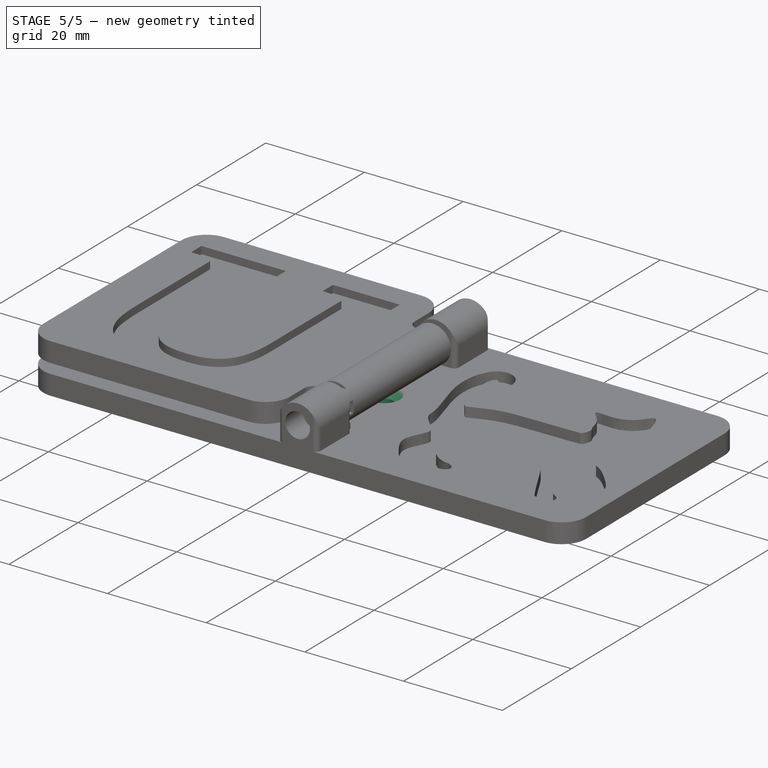
[diagram: stage 5 of 5 — iso view after this stage's code; geometry added in this stage tinted green]
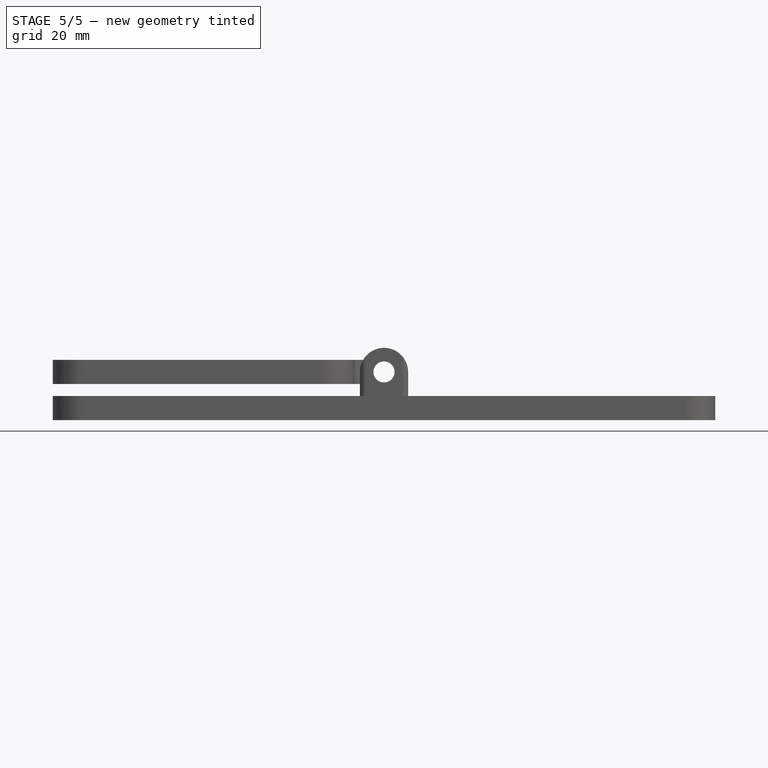
[diagram: stage 5 of 5 — front view after this stage's code; geometry added in this stage tinted green]
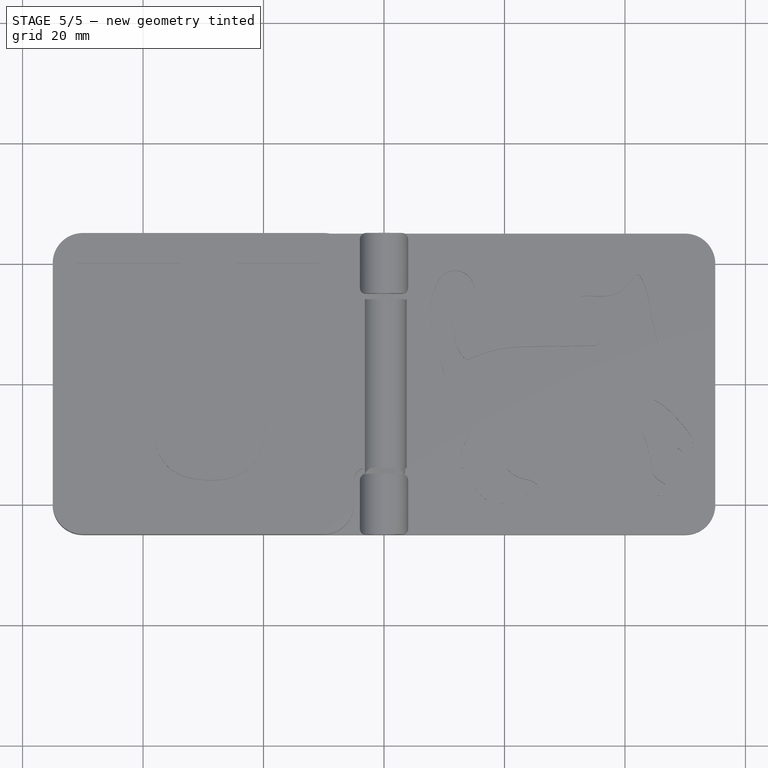
[diagram: stage 5 of 5 — top view after this stage's code; geometry added in this stage tinted green]
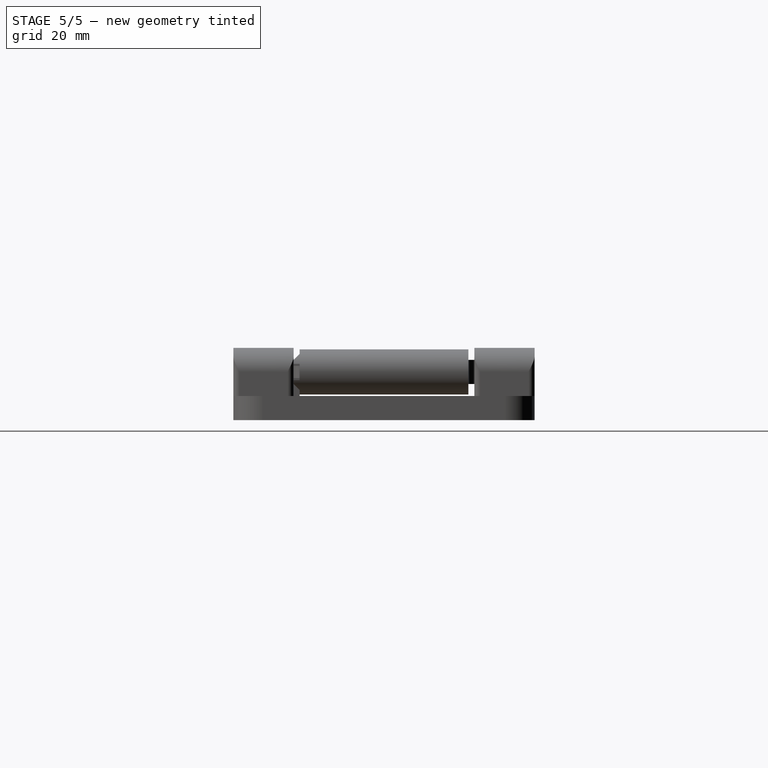
[diagram: stage 5 of 5 — right view after this stage's code; geometry added in this stage tinted green]
FEATURE [Sketcher::SketchObject] Sketch013
  ArcFitTolerance = 1e-06
  AttachmentSupport = -> [Pad004]
  FullyConstrained = true
  MakeInternals = false
  MapMode = 5
  Placement = pos=(0,0,4) rot=(0,0,1;0rad)
  sketch-geometry (1):
    g0: Circle CenterX=0 CenterY=0 CenterZ=0 NormalX=0 NormalY=0 NormalZ=1 AngleXU=0 Radius=1.75
  constraints (2):
    c: Coincident(g0,g-1)
    c: Diameter(g0) = 3.5
FEATURE [PartDesign::Pocket] Pocket006
  BaseFeature = -> Pad004
  Direction = (0,0,-1)
  Length = 5
  Length2 = 5
  Profile = -> Sketch013
  ReferenceAxis = -> Sketch013 [N_Axis]
  Refine = true
  Suppressed = false
  Type = 1
FEATURE [PartDesign::Chamfer] Chamfer
  Angle = 45
  Base = -> Pocket006 [Edge64]
  BaseFeature = -> Pocket006
  ChamferType = 0
  FlipDirection = false
  Refine = true
  Size = 1.5
  Size2 = 1
  SupportTransform = false
  Suppressed = false
  UseAllEdges = false
FEATURE [Sketcher::SketchObject] Sketch014
  ArcFitTolerance = 1e-06
  AttachmentSupport = -> [Chamfer]
  ExternalGeometry = -> [Chamfer]
  FullyConstrained = true
  MakeInternals = false
  MapMode = 5
  Placement = pos=(0,25,0) rot=(0,0.707107,0.707107;3.14159rad)
  sketch-geometry (1):
    g0: Circle CenterX=0 CenterY=8 CenterZ=0 NormalX=0 NormalY=0 NormalZ=1 AngleXU=0 Radius=3.25
  constraints (2):
    c: Coincident(g0,g-3)
    c: Diameter(g0) = 6.5
FEATURE [PartDesign::Pocket] Pocket007
  BaseFeature = -> Chamfer
  Direction = (0,-1,2e-16)
  Length = 5
  Length2 = 5
  Profile = -> Sketch014
  ReferenceAxis = -> Sketch014 [N_Axis]
  Refine = true
  Suppressed = false
  Type = 0
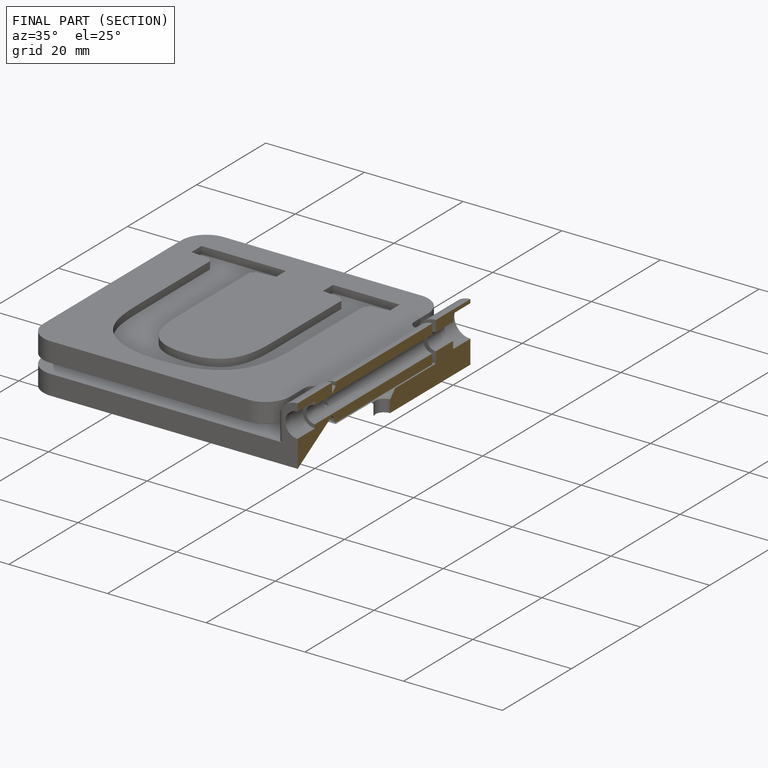
[diagram: finished part — half-section view (interior)]
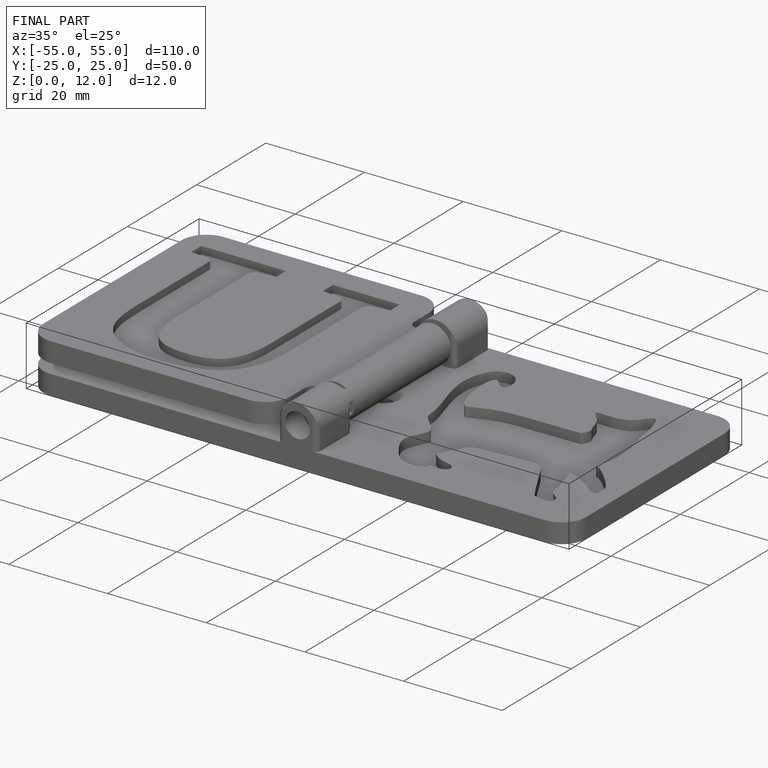
[diagram: finished part — iso view with bounding-box wireframe]
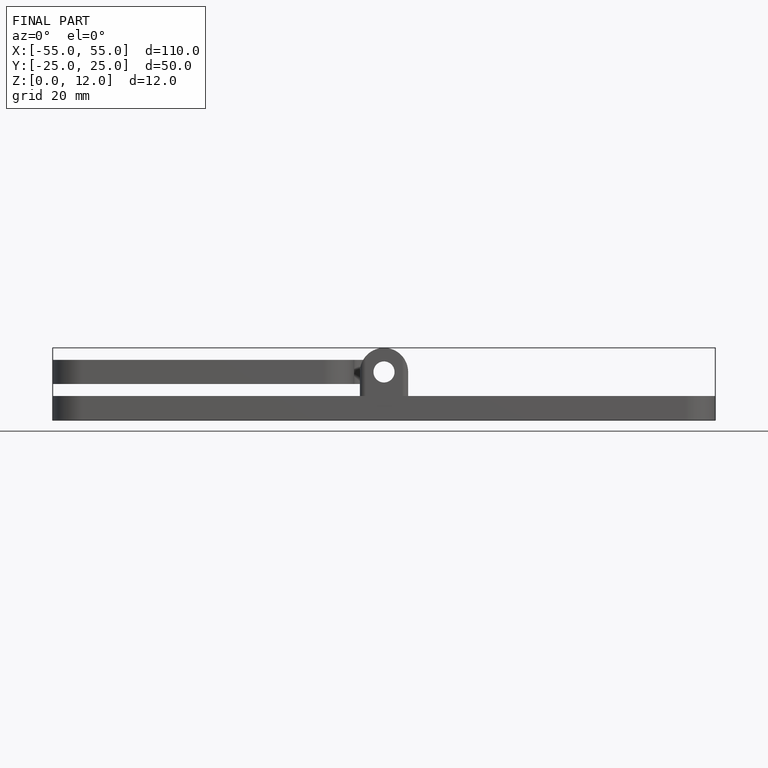
[diagram: finished part — front view with bounding-box wireframe]
